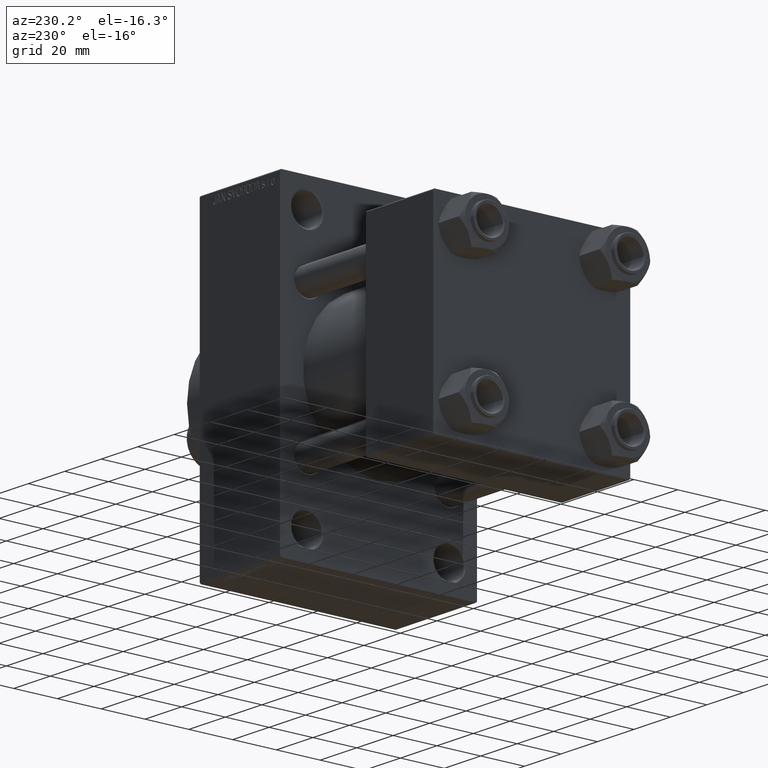
[diagram: clean part render]
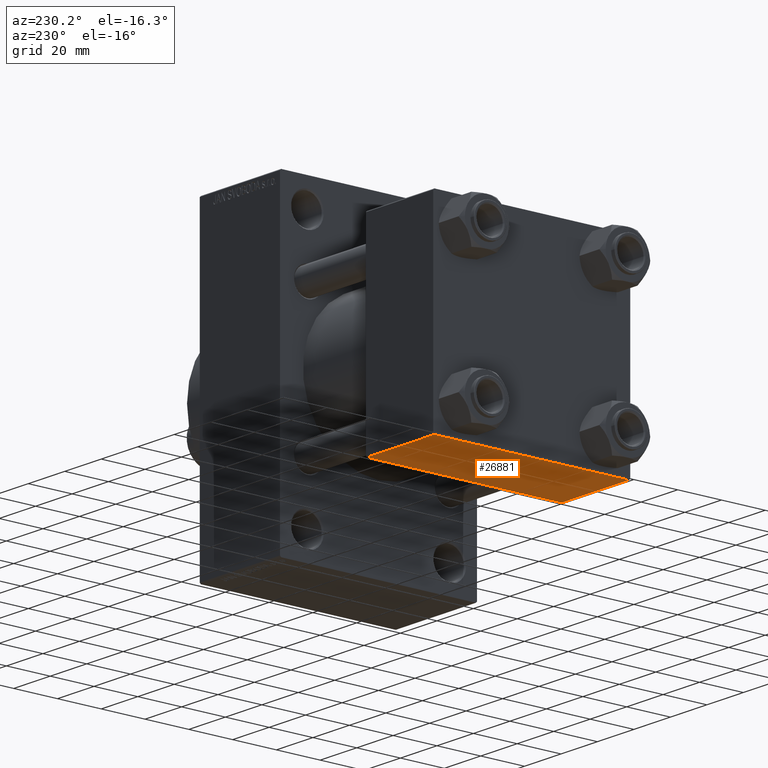
[diagram: same view with one face highlighted and labeled with its STEP entity id]
A machine part, auxiliary view. The second image highlights one B-rep face of the part: STEP entity #26881.
In plain terms, the highlighted planar face has unit normal (0, 0, -1).
Its self-contained STEP definition (entity closure, byte-faithful):
#542 = CARTESIAN_POINT ( 'NONE',  ( 0.000000000000000000, -44.49999999999998579, -45.00000000000000000 ) ) ;
#3165 = CARTESIAN_POINT ( 'NONE',  ( 37.00000000000000000, 44.99999999999998579, -44.99999999999998579 ) ) ;
#3416 = EDGE_CURVE ( 'NONE', #24196, #47597, #39880, .T. ) ;
#4909 = CARTESIAN_POINT ( 'NONE',  ( 37.00000000000000000, 44.99999999999998579, -44.99999999999998579 ) ) ;
#5903 = DIRECTION ( 'NONE',  ( 0.000000000000000000, -1.000000000000000000, -1.541976423090495633E-16 ) ) ;
#11535 = CARTESIAN_POINT ( 'NONE',  ( 0.000000000000000000, -44.49999999999995737, -45.00000000000000000 ) ) ;
#11565 = LINE ( 'NONE', #26986, #38257 ) ;
#11795 = DIRECTION ( 'NONE',  ( 1.000000000000000000, 0.000000000000000000, 0.000000000000000000 ) ) ;
#12021 = VERTEX_POINT ( 'NONE', #44358 ) ;
#12611 = VECTOR ( 'NONE', #5903, 1000.000000000000000 ) ;
#14008 = DIRECTION ( 'NONE',  ( 0.000000000000000000, 1.000000000000000000, 1.541976423090495880E-16 ) ) ;
#15760 = EDGE_LOOP ( 'NONE', ( #37843, #40725, #27387, #26297 ) ) ;
#16481 = LINE ( 'NONE', #4909, #39262 ) ;
#20532 = EDGE_CURVE ( 'NONE', #12021, #47658, #16481, .T. ) ;
#21660 = EDGE_CURVE ( 'NONE', #47658, #47597, #30180, .T. ) ;
#23879 = CARTESIAN_POINT ( 'NONE',  ( 0.000000000000000000, 44.49999999999998579, -44.99999999999998579 ) ) ;
#24196 = VERTEX_POINT ( 'NONE', #23879 ) ;
#24713 = CARTESIAN_POINT ( 'NONE',  ( 0.000000000000000000, 44.99999999999998579, -44.99999999999998579 ) ) ;
#26297 = ORIENTED_EDGE ( 'NONE', *, *, #21660, .T. ) ;
#26881 = ADVANCED_FACE ( 'NONE', ( #36204 ), #47269, .T. ) ;
#26986 = CARTESIAN_POINT ( 'NONE',  ( 37.00000000000000000, 44.49999999999998579, -44.99999999999998579 ) ) ;
#27387 = ORIENTED_EDGE ( 'NONE', *, *, #20532, .T. ) ;
#28238 = DIRECTION ( 'NONE',  ( 0.000000000000000000, 1.541976423090495880E-16, -1.000000000000000000 ) ) ;
#30059 = VECTOR ( 'NONE', #37420, 1000.000000000000000 ) ;
#30180 = LINE ( 'NONE', #542, #30059 ) ;
#34956 = AXIS2_PLACEMENT_3D ( 'NONE', #3165, #28238, #14008 ) ;
#35932 = DIRECTION ( 'NONE',  ( 0.000000000000000000, -1.000000000000000000, -1.541976423090495633E-16 ) ) ;
#36204 = FACE_OUTER_BOUND ( 'NONE', #15760, .T. ) ;
#37420 = DIRECTION ( 'NONE',  ( -1.000000000000000000, 0.000000000000000000, 0.000000000000000000 ) ) ;
#37817 = EDGE_CURVE ( 'NONE', #24196, #12021, #11565, .T. ) ;
#37843 = ORIENTED_EDGE ( 'NONE', *, *, #3416, .F. ) ;
#38257 = VECTOR ( 'NONE', #11795, 1000.000000000000000 ) ;
#38997 = CARTESIAN_POINT ( 'NONE',  ( 37.00000000000000000, -44.49999999999995737, -45.00000000000000000 ) ) ;
#39262 = VECTOR ( 'NONE', #35932, 1000.000000000000000 ) ;
#39880 = LINE ( 'NONE', #24713, #12611 ) ;
#40725 = ORIENTED_EDGE ( 'NONE', *, *, #37817, .T. ) ;
#44358 = CARTESIAN_POINT ( 'NONE',  ( 37.00000000000000000, 44.49999999999998579, -44.99999999999998579 ) ) ;
#47269 = PLANE ( 'NONE',  #34956 ) ;
#47597 = VERTEX_POINT ( 'NONE', #11535 ) ;
#47658 = VERTEX_POINT ( 'NONE', #38997 ) ;